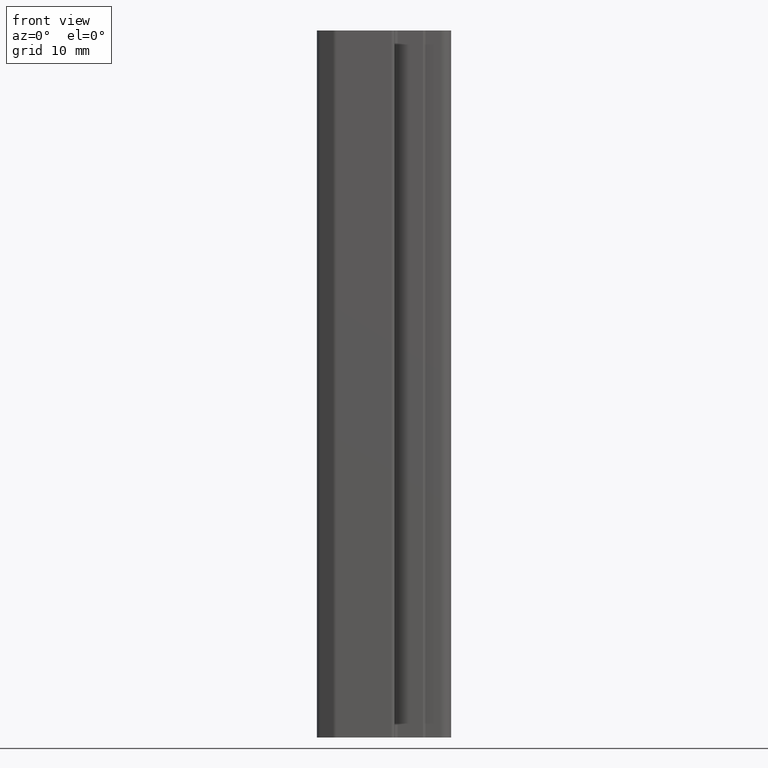
[diagram: clean part render]
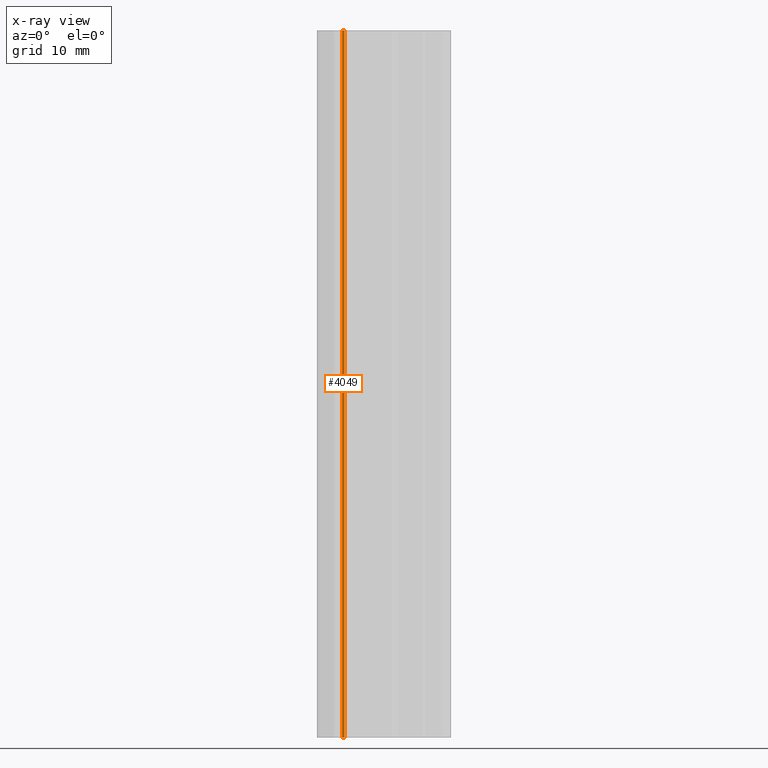
[diagram: x-ray — body ghosted, one internal face saturated and labeled with its STEP entity id]
A machine part, front view, then the same camera in x-ray: the body is ghosted and one INTERNAL B-rep face — a face not visible from any outside direction — is saturated and labeled: STEP entity #4049.
In plain terms, the highlighted planar face has unit normal (-0.2755, -0.9613, 0).
Its self-contained STEP definition (entity closure, byte-faithful):
#43=FACE_OUTER_BOUND('',#245,.T.);
#245=EDGE_LOOP('',(#2731,#2732,#2733,#2734));
#502=LINE('',#5624,#1102);
#504=LINE('',#5628,#1104);
#505=LINE('',#5630,#1105);
#506=LINE('',#5631,#1106);
#1102=VECTOR('',#4589,10.);
#1104=VECTOR('',#4593,10.);
#1105=VECTOR('',#4594,10.);
#1106=VECTOR('',#4595,10.);
#1675=VERTEX_POINT('',#5621);
#1676=VERTEX_POINT('',#5623);
#1677=VERTEX_POINT('',#5627);
#1678=VERTEX_POINT('',#5629);
#2102=EDGE_CURVE('',#1676,#1675,#502,.T.);
#2104=EDGE_CURVE('',#1675,#1677,#504,.T.);
#2105=EDGE_CURVE('',#1678,#1677,#505,.T.);
#2106=EDGE_CURVE('',#1678,#1676,#506,.T.);
#2731=ORIENTED_EDGE('',*,*,#2104,.T.);
#2732=ORIENTED_EDGE('',*,*,#2105,.F.);
#2733=ORIENTED_EDGE('',*,*,#2106,.T.);
#2734=ORIENTED_EDGE('',*,*,#2102,.T.);
#3847=PLANE('',#4274);
#4049=ADVANCED_FACE('',(#43),#3847,.T.);
#4274=AXIS2_PLACEMENT_3D('',#5626,#4591,#4592);
#4589=DIRECTION('',(0.,0.,1.));
#4591=DIRECTION('center_axis',(-0.275495773964706,-0.96130228259772,0.));
#4592=DIRECTION('ref_axis',(0.,0.,-1.));
#4593=DIRECTION('',(-0.96130228259772,0.275495773964706,0.));
#4594=DIRECTION('',(0.,0.,1.));
#4595=DIRECTION('',(0.96130228259772,-0.275495773964706,0.));
#5621=CARTESIAN_POINT('',(1151.33327002262,1722.18014512347,100.));
#5623=CARTESIAN_POINT('',(1151.33327002262,1722.18014512347,0.));
#5624=CARTESIAN_POINT('',(1151.33327002262,1722.18014512347,0.));
#5626=CARTESIAN_POINT('Origin',(1151.33327002262,1722.18014512347,0.));
#5627=CARTESIAN_POINT('',(1151.01007418487,1722.27276852516,100.));
#5628=CARTESIAN_POINT('',(1151.01007418487,1722.27276852516,100.));
#5629=CARTESIAN_POINT('',(1151.01007418487,1722.27276852516,0.));
#5630=CARTESIAN_POINT('',(1151.01007418487,1722.27276852516,0.));
#5631=CARTESIAN_POINT('',(1151.01007418487,1722.27276852516,0.));